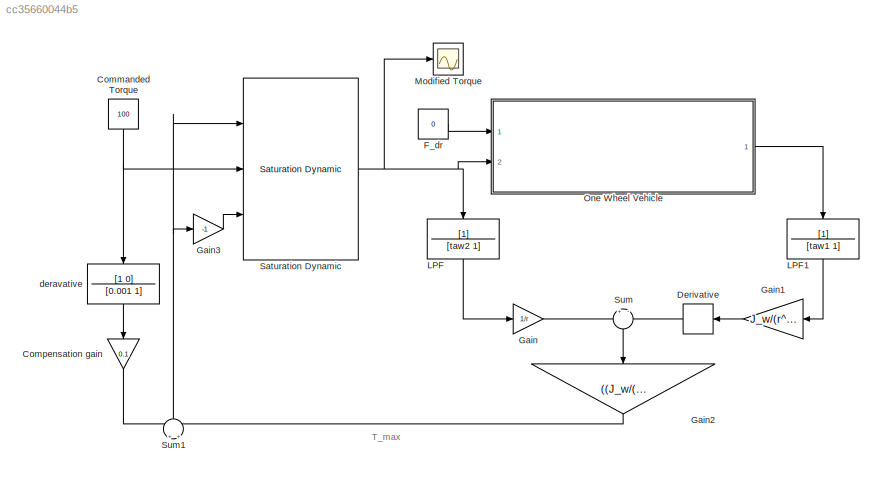
MODEL slx_cc35660044b5
KIND model
CONFIG AbsTol = auto
CONFIG FixedStep = auto
CONFIG MaxStep = auto
CONFIG MinStep = auto
CONFIG RelTol = 1e-3
CONFIG SampleTimeConstraint = Unconstrained
CONFIG Solver = VariableStepAuto
CONFIG SolverMode = Auto
CONFIG SolverName = VariableStepAuto
CONFIG StartTime = 0.0
CONFIG StopTime = 2.15
BLOCK [Constant] Commanded Torque
  Value = 100
BLOCK [Gain] Compensation gain
  Gain = 0.1
  OutDataTypeStr = Inherit: Inherit via internal rule
  ParamDataTypeStr = Inherit: Inherit via internal rule
  SaturateOnIntegerOverflow = off
BLOCK [Derivative] Derivative
BLOCK [Constant] F_dr
  Value = 0
BLOCK [Gain] Gain
  Gain = 1/r
  OutDataTypeStr = Inherit: Inherit via internal rule
  ParamDataTypeStr = Inherit: Inherit via internal rule
  SaturateOnIntegerOverflow = off
BLOCK [Gain] Gain1
  Gain = J_w/(r^2)
  OutDataTypeStr = Inherit: Inherit via internal rule
  ParamDataTypeStr = Inherit: Inherit via internal rule
  SaturateOnIntegerOverflow = off
BLOCK [Gain] Gain2
  Gain = ((J_w/(alpha*M*r*r))+1)*r
  OutDataTypeStr = Inherit: Inherit via internal rule
  ParamDataTypeStr = Inherit: Inherit via internal rule
  SaturateOnIntegerOverflow = off
BLOCK [Gain] Gain3
  Gain = -1
  OutDataTypeStr = Inherit: Inherit via internal rule
  ParamDataTypeStr = Inherit: Inherit via internal rule
  SaturateOnIntegerOverflow = off
BLOCK [TransferFcn] LPF
  Denominator = [taw2 1]
BLOCK [TransferFcn] LPF1
  Denominator = [taw1 1]
BLOCK [Scope] Modified Torque
  Ports = [1]
  ScopeSpecificationString = Simulink.scopes.TimeScopeBlockCfg('CurrentConfiguration', extmgr.ConfigurationSet(extmgr.Configuration('Core','General UI',true),extmgr.Configuration('Core','Source UI',true),extmgr.Configuration('Sources','WiredSimulink',true,'DataLoggingVariableName','ScopeData2'),extmgr.Configuration('Visuals','Time Domain',true,'SerializedDisplays',{struct('MinYLimReal','51.06539','MaxYLimReal','105.43718','YL...<+1415ch>
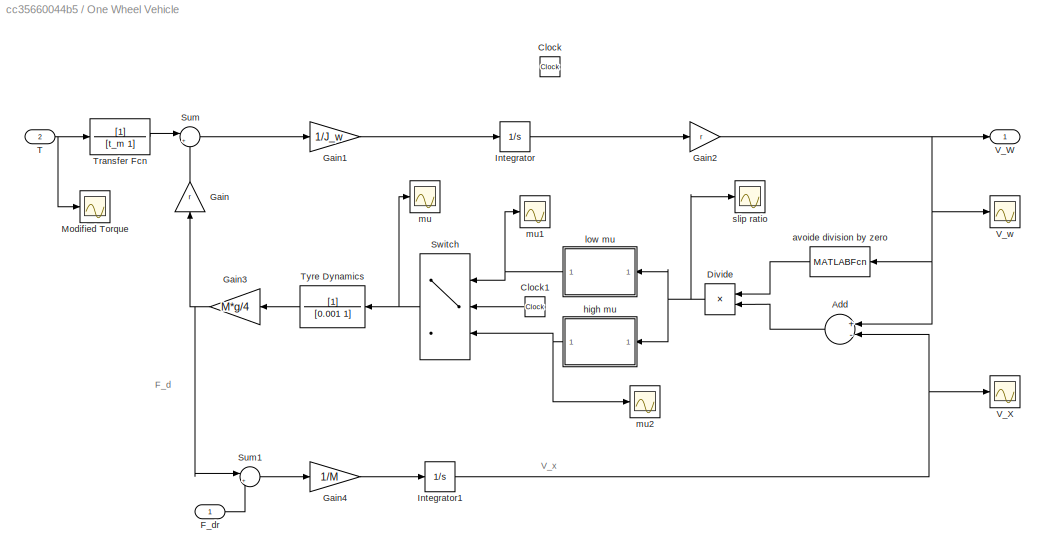
BLOCK [SubSystem] One Wheel Vehicle
  Ports = [2, 1]
  RequestExecContextInheritance = off
  Variant = off
BLOCK [Sum] One Wheel Vehicle/Add
  InputSameDT = off
  Inputs = +-
  OutDataTypeStr = Inherit: Inherit via internal rule
  Ports = [2, 1]
  SaturateOnIntegerOverflow = off
BLOCK [Clock] One Wheel Vehicle/Clock
BLOCK [Clock] One Wheel Vehicle/Clock1
BLOCK [Product] One Wheel Vehicle/Divide
  InputSameDT = off
  Inputs = /*
  OutDataTypeStr = Inherit: Inherit via internal rule
  Ports = [2, 1]
  RndMeth = Floor
  SaturateOnIntegerOverflow = off
BLOCK [Inport] One Wheel Vehicle/F_dr
  IconDisplay = Port number
BLOCK [Gain] One Wheel Vehicle/Gain
  Gain = r
  OutDataTypeStr = Inherit: Inherit via internal rule
  ParamDataTypeStr = Inherit: Inherit via internal rule
  SaturateOnIntegerOverflow = off
BLOCK [Gain] One Wheel Vehicle/Gain1
  Gain = 1/J_w
  OutDataTypeStr = Inherit: Inherit via internal rule
  ParamDataTypeStr = Inherit: Inherit via internal rule
  SaturateOnIntegerOverflow = off
BLOCK [Gain] One Wheel Vehicle/Gain2
  Gain = r
  OutDataTypeStr = Inherit: Inherit via internal rule
  ParamDataTypeStr = Inherit: Inherit via internal rule
  SaturateOnIntegerOverflow = off
BLOCK [Gain] One Wheel Vehicle/Gain3
  Gain = M*g/4
  OutDataTypeStr = Inherit: Inherit via internal rule
  ParamDataTypeStr = Inherit: Inherit via internal rule
  SaturateOnIntegerOverflow = off
BLOCK [Gain] One Wheel Vehicle/Gain4
  Gain = 1/M
  OutDataTypeStr = Inherit: Inherit via internal rule
  ParamDataTypeStr = Inherit: Inherit via internal rule
  SaturateOnIntegerOverflow = off
BLOCK [Integrator] One Wheel Vehicle/Integrator
  Ports = [1, 1]
BLOCK [Integrator] One Wheel Vehicle/Integrator1
  Ports = [1, 1]
BLOCK [Scope] One Wheel Vehicle/Modified Torque
  Ports = [1]
  ScopeSpecificationString = Simulink.scopes.TimeScopeBlockCfg('CurrentConfiguration', extmgr.ConfigurationSet(extmgr.Configuration('Core','General UI',true),extmgr.Configuration('Core','Source UI',true),extmgr.Configuration('Sources','WiredSimulink',true),extmgr.Configuration('Visuals','Time Domain',true,'SerializedDisplays',{struct('MinYLimReal','51.06539','MaxYLimReal','105.43718','YLabelReal','','MinYLimMag','51.06539','M...<+1331ch>
BLOCK [Sum] One Wheel Vehicle/Sum
  IconShape = round
  InputSameDT = off
  Inputs = |+-
  OutDataTypeStr = Inherit: Inherit via internal rule
  Ports = [2, 1]
  SaturateOnIntegerOverflow = off
BLOCK [Sum] One Wheel Vehicle/Sum1
  IconShape = round
  InputSameDT = off
  Inputs = |+-
  OutDataTypeStr = Inherit: Inherit via internal rule
  Ports = [2, 1]
  SaturateOnIntegerOverflow = off
BLOCK [Switch] One Wheel Vehicle/Switch
  Criteria = u2 > Threshold
  InputSameDT = off
  SaturateOnIntegerOverflow = off
  Threshold = 2
  ZeroCross = off
BLOCK [Inport] One Wheel Vehicle/T
  IconDisplay = Port number
  Port = 2
BLOCK [TransferFcn] One Wheel Vehicle/Transfer Fcn
  Denominator = [t_m 1]
BLOCK [TransferFcn] One Wheel Vehicle/Tyre Dynamics
  Denominator = [0.001 1]
BLOCK [Outport] One Wheel Vehicle/V_W
  IconDisplay = Port number
BLOCK [Scope] One Wheel Vehicle/V_X
  Ports = [1]
  ScopeSpecificationString = Simulink.scopes.TimeScopeBlockCfg('CurrentConfiguration', extmgr.ConfigurationSet(extmgr.Configuration('Core','General UI',true),extmgr.Configuration('Core','Source UI',true),extmgr.Configuration('Sources','WiredSimulink',true,'DataLoggingVariableName','ScopeData1'),extmgr.Configuration('Visuals','Time Domain',true,'SerializedDisplays',{struct('MinYLimReal','-0.57006','MaxYLimReal','5.13052','YLab...<+1370ch>
BLOCK [Scope] One Wheel Vehicle/V_w
  Ports = [1]
  ScopeSpecificationString = Simulink.scopes.TimeScopeBlockCfg('CurrentConfiguration', extmgr.ConfigurationSet(extmgr.Configuration('Core','General UI',true),extmgr.Configuration('Core','Source UI',true),extmgr.Configuration('Sources','WiredSimulink',true,'DataLoggingVariableName','ScopeData1'),extmgr.Configuration('Visuals','Time Domain',true,'SerializedDisplays',{struct('MinYLimReal','-75.83428','MaxYLimReal','8.42603','YLa...<+1395ch>
BLOCK [MATLABFcn] One Wheel Vehicle/avoide division by zero
  MATLABFcn = u+(u==0)*1
  Ports = [1, 1]
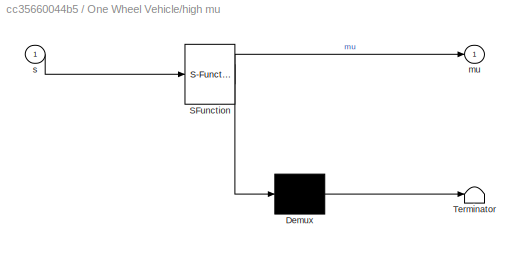
BLOCK [SubSystem] One Wheel Vehicle/high mu
  ErrorFcn = Stateflow.Translate.translate
  PermitHierarchicalResolution = ExplicitOnly
  Ports = [1, 1]
  RequestExecContextInheritance = off
  SFBlockType = MATLAB Function
  TreatAsAtomicUnit = on
  Variant = off
BLOCK [Demux] One Wheel Vehicle/high mu/ Demux 
  Outputs = 1
  Ports = [1, 1]
BLOCK [S-Function] One Wheel Vehicle/high mu/ SFunction 
  EnableBusSupport = on
  FunctionName = sf_sfun
  PortCounts = [1 2]
  Ports = [1, 2]
  SFunctionDeploymentMode = off
  Tag = Stateflow S-Function yin_2009 1
BLOCK [Terminator] One Wheel Vehicle/high mu/ Terminator 
BLOCK [Outport] One Wheel Vehicle/high mu/mu
  IconDisplay = Port number
BLOCK [Inport] One Wheel Vehicle/high mu/s
  IconDisplay = Port number
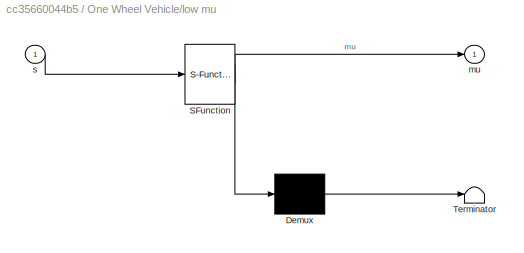
BLOCK [SubSystem] One Wheel Vehicle/low mu
  ErrorFcn = Stateflow.Translate.translate
  PermitHierarchicalResolution = ExplicitOnly
  Ports = [1, 1]
  RequestExecContextInheritance = off
  SFBlockType = MATLAB Function
  TreatAsAtomicUnit = on
  Variant = off
BLOCK [Demux] One Wheel Vehicle/low mu/ Demux 
  Outputs = 1
  Ports = [1, 1]
BLOCK [S-Function] One Wheel Vehicle/low mu/ SFunction 
  EnableBusSupport = on
  FunctionName = sf_sfun
  PortCounts = [1 2]
  Ports = [1, 2]
  SFunctionDeploymentMode = off
  Tag = Stateflow S-Function yin_2009 3
BLOCK [Terminator] One Wheel Vehicle/low mu/ Terminator 
BLOCK [Outport] One Wheel Vehicle/low mu/mu
  IconDisplay = Port number
BLOCK [Inport] One Wheel Vehicle/low mu/s
  IconDisplay = Port number
BLOCK [Scope] One Wheel Vehicle/mu
  Ports = [1]
  ScopeSpecificationString = Simulink.scopes.TimeScopeBlockCfg('CurrentConfiguration', extmgr.ConfigurationSet(extmgr.Configuration('Core','General UI',true),extmgr.Configuration('Core','Source UI',true),extmgr.Configuration('Sources','WiredSimulink',true,'DataLoggingVariableName','ScopeData4'),extmgr.Configuration('Visuals','Time Domain',true,'SerializedDisplays',{struct('MinYLimReal','-0.11381','MaxYLimReal','1.02433','YLab...<+1392ch>
BLOCK [Scope] One Wheel Vehicle/mu1
  Ports = [1]
  ScopeSpecificationString = Simulink.scopes.TimeScopeBlockCfg('CurrentConfiguration', extmgr.ConfigurationSet(extmgr.Configuration('Core','General UI',true),extmgr.Configuration('Core','Source UI',true),extmgr.Configuration('Sources','WiredSimulink',true,'DataLoggingVariableName','ScopeData5'),extmgr.Configuration('Visuals','Time Domain',true,'SerializedDisplays',{struct('MinYLimReal','-0.03561','MaxYLimReal','0.3205','YLabe...<+1389ch>
BLOCK [Scope] One Wheel Vehicle/mu2
  Ports = [1]
  ScopeSpecificationString = Simulink.scopes.TimeScopeBlockCfg('CurrentConfiguration', extmgr.ConfigurationSet(extmgr.Configuration('Core','General UI',true),extmgr.Configuration('Core','Source UI',true),extmgr.Configuration('Sources','WiredSimulink',true,'DataLoggingVariableName','ScopeData6'),extmgr.Configuration('Visuals','Time Domain',true,'SerializedDisplays',{struct('MinYLimReal','-0.11381','MaxYLimReal','1.02433','YLab...<+1392ch>
BLOCK [Scope] One Wheel Vehicle/slip ratio
  Ports = [1]
  ScopeSpecificationString = Simulink.scopes.TimeScopeBlockCfg('CurrentConfiguration', extmgr.ConfigurationSet(extmgr.Configuration('Core','General UI',true),extmgr.Configuration('Core','Source UI',true),extmgr.Configuration('Sources','WiredSimulink',true,'DataLoggingVariableName','ScopeData3'),extmgr.Configuration('Visuals','Time Domain',true,'SerializedDisplays',{struct('MinYLimReal','-0.70322','MaxYLimReal','1.15937','YLab...<+1412ch>
BLOCK [Reference] Saturation Dynamic  REF=simulink/Discontinuities/Saturation
Dynamic
  Ports = [3, 1]
  SourceBlock = simulink/Discontinuities/Saturation\nDynamic
  SourceType = Saturation Dynamic
BLOCK [Sum] Sum
  IconShape = round
  InputSameDT = off
  Inputs = +|-
  OutDataTypeStr = Inherit: Inherit via internal rule
  Ports = [2, 1]
  SaturateOnIntegerOverflow = off
BLOCK [Sum] Sum1
  IconShape = round
  InputSameDT = off
  Inputs = +|+
  OutDataTypeStr = Inherit: Inherit via internal rule
  Ports = [2, 1]
  SaturateOnIntegerOverflow = off
BLOCK [TransferFcn] deravative
  Denominator = [0.001 1]
  Numerator = [1 0]
ANNOTATION (root): T_max
ANNOTATION One Wheel Vehicle: F_d
ANNOTATION One Wheel Vehicle: V_x
NET Commanded Torque:1 -> Saturation Dynamic:2, deravative:1
LINE Compensation gain:1 -> Sum1:1
LINE Derivative:1 -> Sum:2
LINE F_dr:1 -> One Wheel Vehicle:1
LINE Gain1:1 -> Derivative:1
LINE Gain2:1 -> Sum1:2
LINE Gain3:1 -> Saturation Dynamic:3
LINE Gain:1 -> Sum:1
LINE LPF1:1 -> Gain1:1
LINE LPF:1 -> Gain:1
LINE One Wheel Vehicle/Add:1 -> One Wheel Vehicle/Divide:2
LINE One Wheel Vehicle/Clock1:1 -> One Wheel Vehicle/Switch:2
NET One Wheel Vehicle/Divide:1 -> One Wheel Vehicle/high mu:1, One Wheel Vehicle/low mu:1, One Wheel Vehicle/slip ratio:1
LINE One Wheel Vehicle/F_dr:1 -> One Wheel Vehicle/Sum1:2
LINE One Wheel Vehicle/Gain1:1 -> One Wheel Vehicle/Integrator:1
NET One Wheel Vehicle/Gain2:1 -> One Wheel Vehicle/Add:1, One Wheel Vehicle/V_W:1, One Wheel Vehicle/V_w:1, One Wheel Vehicle/avoide division by zero:1
NET One Wheel Vehicle/Gain3:1 -> One Wheel Vehicle/Gain:1, One Wheel Vehicle/Sum1:1
LINE One Wheel Vehicle/Gain4:1 -> One Wheel Vehicle/Integrator1:1
LINE One Wheel Vehicle/Gain:1 -> One Wheel Vehicle/Sum:2
NET One Wheel Vehicle/Integrator1:1 -> One Wheel Vehicle/Add:2, One Wheel Vehicle/V_X:1
LINE One Wheel Vehicle/Integrator:1 -> One Wheel Vehicle/Gain2:1
LINE One Wheel Vehicle/Sum1:1 -> One Wheel Vehicle/Gain4:1
LINE One Wheel Vehicle/Sum:1 -> One Wheel Vehicle/Gain1:1
NET One Wheel Vehicle/Switch:1 -> One Wheel Vehicle/Tyre Dynamics:1, One Wheel Vehicle/mu:1
NET One Wheel Vehicle/T:1 -> One Wheel Vehicle/Modified Torque:1, One Wheel Vehicle/Transfer Fcn:1
LINE One Wheel Vehicle/Transfer Fcn:1 -> One Wheel Vehicle/Sum:1
LINE One Wheel Vehicle/Tyre Dynamics:1 -> One Wheel Vehicle/Gain3:1
LINE One Wheel Vehicle/avoide division by zero:1 -> One Wheel Vehicle/Divide:1
NET One Wheel Vehicle/high mu:1 -> One Wheel Vehicle/Switch:3, One Wheel Vehicle/mu2:1
NET One Wheel Vehicle/low mu:1 -> One Wheel Vehicle/Switch:1, One Wheel Vehicle/mu1:1
LINE One Wheel Vehicle:1 -> LPF1:1
NET Saturation Dynamic:1 -> LPF:1, Modified Torque:1, One Wheel Vehicle:2
NET Sum1:1 -> Gain3:1, Saturation Dynamic:1
LINE Sum:1 -> Gain2:1
LINE deravative:1 -> Compensation gain:1
note: NET lines group one-source signal fan-out (src -> all destinations, sorted); 1:1 wires keep LINE
CHART One Wheel Vehicle/high mu states=1 transitions=1
  STATE_LABEL 'eML_blk_kernel()'
  STATE_LABEL 'SCRIPT:\nfunction mu = fcn(s)\n\nmu = sin(1.9 * atan(  10*s-0.97*(10*s-atan( 10*s )))  );\n'
CHART One Wheel Vehicle/low mu states=1 transitions=1
  STATE_LABEL 'eML_blk_kernel()'
  STATE_LABEL 'SCRIPT:\nfunction mu = fcn(s)\n\nmu = 0.3*sin(2 * atan(  5*s-1*(5*s-atan( 5*s )))  );'
